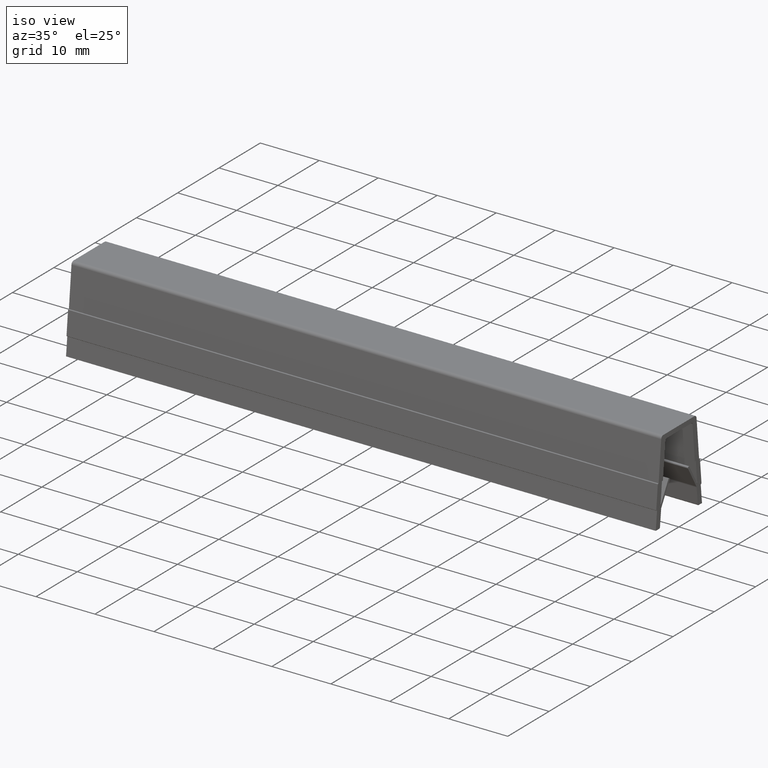
[diagram: clean part render]
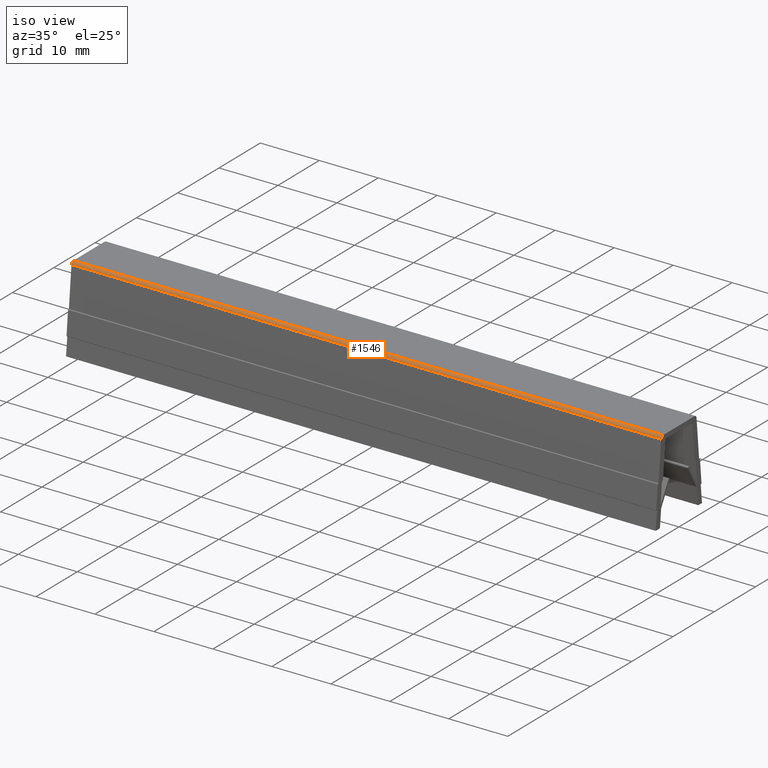
[diagram: same view with one face highlighted and labeled with its STEP entity id]
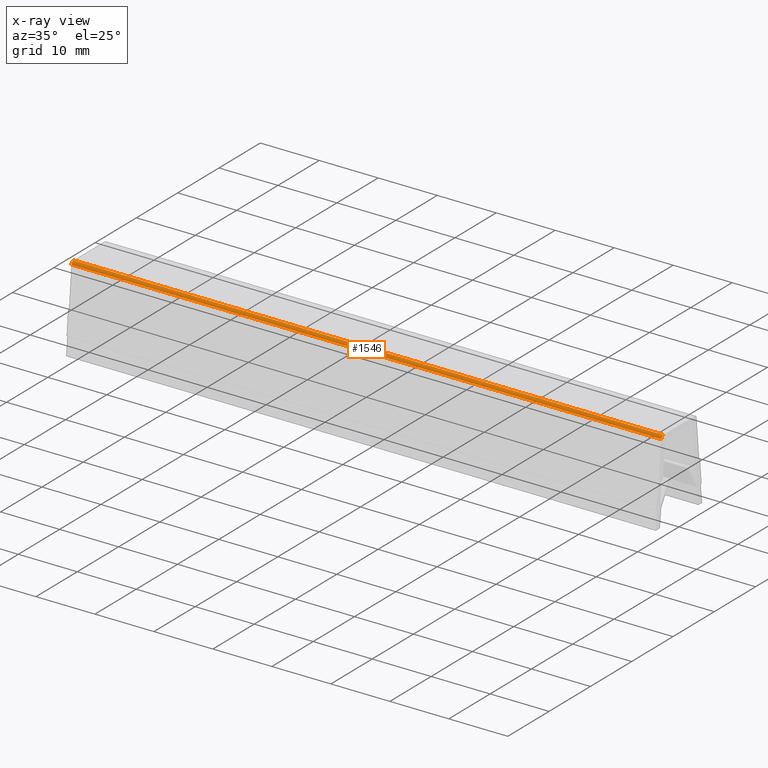
[diagram: x-ray of the same camera — body ghosted, the highlighted face saturated]
A machine part, iso view. The second image highlights one B-rep face of the part: STEP entity #1546.
The next image is the same camera in x-ray: the body ghosted, the highlighted face saturated — about 0% of this face is hidden behind the body in this view.
In plain terms, the highlighted cylindrical surface (edge-blend (fillet) strip) has radius 0.5 mm, axis along (-1, 0, 0).
Its self-contained STEP definition (entity closure, byte-faithful):
#213=CARTESIAN_POINT('',(100.0,-3.779367162833399,0.799999999999996));
#214=VERTEX_POINT('',#213);
#231=CARTESIAN_POINT('',(0.0,-3.779367162833399,0.799999999999996));
#232=VERTEX_POINT('',#231);
#239=CARTESIAN_POINT('',(0.0,-3.779367162833399,0.799999999999996));
#240=DIRECTION('',(1.0,0.0,0.0));
#241=VECTOR('',#240,100.0);
#242=LINE('',#239,#241);
#243=EDGE_CURVE('',#232,#214,#242,.T.);
#271=CARTESIAN_POINT('',(100.0,-4.277114899130373,0.347404546313994));
#272=VERTEX_POINT('',#271);
#273=CARTESIAN_POINT('',(100.0,-3.779367162833399,0.299999999999996));
#274=DIRECTION('',(1.0,0.0,0.0));
#275=DIRECTION('',(0.0,-1.0,6.123234E-017));
#276=AXIS2_PLACEMENT_3D('',#273,#274,#275);
#277=CIRCLE('',#276,0.500000000000001);
#278=EDGE_CURVE('',#214,#272,#277,.T.);
#922=CARTESIAN_POINT('',(0.0,-4.277114899130373,0.347404546313994));
#923=VERTEX_POINT('',#922);
#930=CARTESIAN_POINT('',(0.0,-3.779367162833399,0.299999999999996));
#931=DIRECTION('',(-1.0,0.0,0.0));
#932=DIRECTION('',(0.0,-1.0,6.123234E-017));
#933=AXIS2_PLACEMENT_3D('',#930,#931,#932);
#934=CIRCLE('',#933,0.500000000000001);
#935=EDGE_CURVE('',#923,#232,#934,.T.);
#968=CARTESIAN_POINT('',(100.0,-4.277114899130373,0.347404546313994));
#969=DIRECTION('',(-1.0,0.0,0.0));
#970=VECTOR('',#969,100.0);
#971=LINE('',#968,#970);
#972=EDGE_CURVE('',#272,#923,#971,.T.);
#1535=CARTESIAN_POINT('',(100.000000009999990,-3.779367162833399,0.299999999999996));
#1536=DIRECTION('',(-1.0,0.0,0.0));
#1537=DIRECTION('',(0.0,-1.0,6.123234E-017));
#1538=AXIS2_PLACEMENT_3D('',#1535,#1536,#1537);
#1539=CYLINDRICAL_SURFACE('',#1538,0.500000000000001);
#1540=ORIENTED_EDGE('',*,*,#278,.F.);
#1541=ORIENTED_EDGE('',*,*,#243,.F.);
#1542=ORIENTED_EDGE('',*,*,#935,.F.);
#1543=ORIENTED_EDGE('',*,*,#972,.F.);
#1544=EDGE_LOOP('',(#1540,#1541,#1542,#1543));
#1545=FACE_OUTER_BOUND('',#1544,.T.);
#1546=ADVANCED_FACE('',(#1545),#1539,.T.);